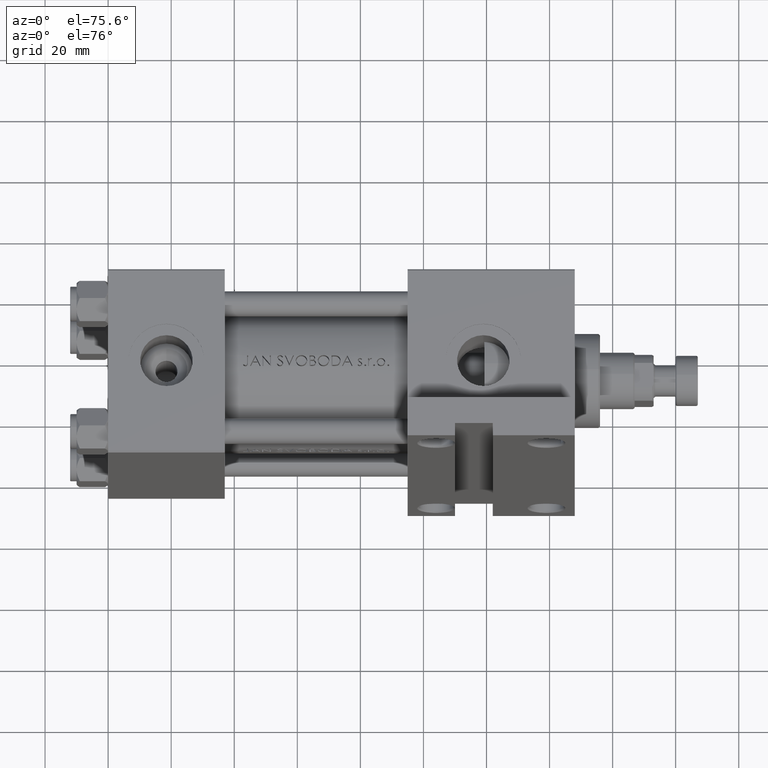
[diagram: clean part render]
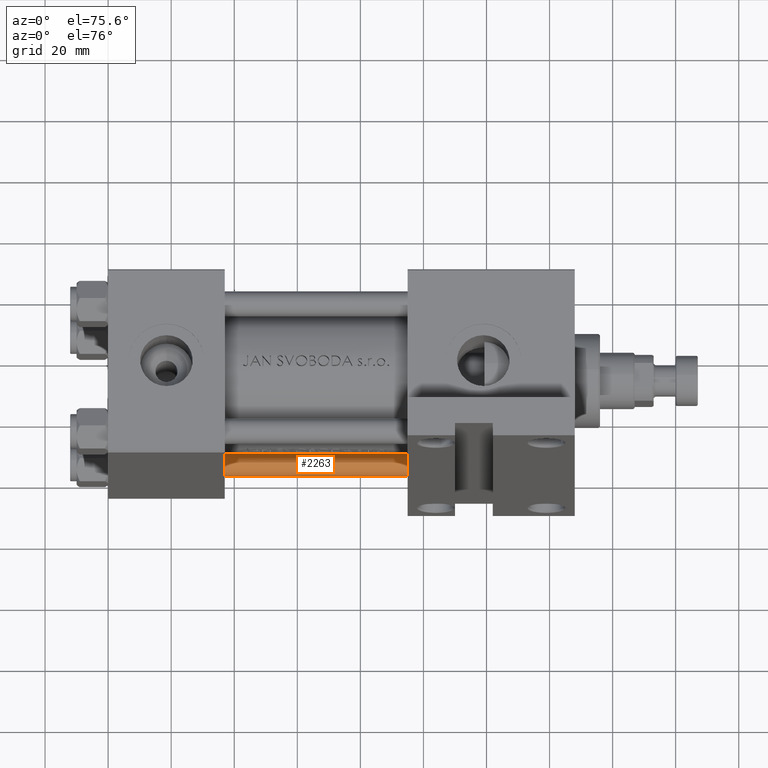
[diagram: same view with one face highlighted and labeled with its STEP entity id]
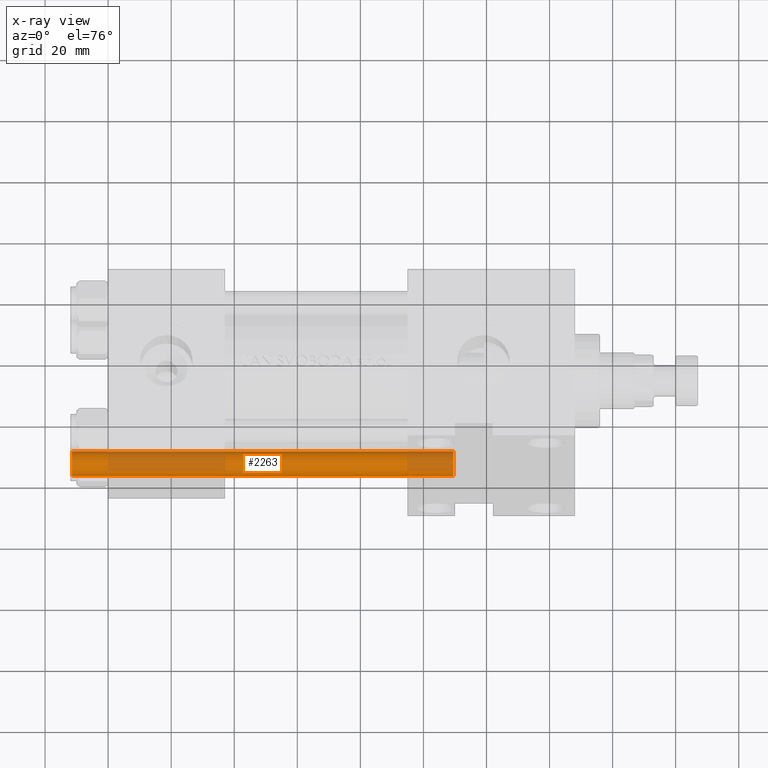
[diagram: x-ray of the same camera — body ghosted, the highlighted face saturated]
A machine part, auxiliary view. The second image highlights one B-rep face of the part: STEP entity #2263.
The next image is the same camera in x-ray: the body ghosted, the highlighted face saturated — about 35% of this face is hidden behind the body in this view.
In plain terms, the highlighted cylindrical surface (edge-blend (fillet) strip) has radius 4 mm, axis along (1, 0, 0).
Its self-contained STEP definition (entity closure, byte-faithful):
#1194 = AXIS2_PLACEMENT_3D ( 'NONE', #21496, #37397, #29452 ) ;
#2263 = ADVANCED_FACE ( 'NONE', ( #7057 ), #18252, .T. ) ;
#2297 = CARTESIAN_POINT ( 'NONE',  ( -4.000000000000000000, 0.000000000000000000, 121.5000000000000426 ) ) ;
#7057 = FACE_OUTER_BOUND ( 'NONE', #12058, .T. ) ;
#8117 = CIRCLE ( 'NONE', #34328, 4.000000000000000000 ) ;
#8607 = CARTESIAN_POINT ( 'NONE',  ( 4.000000000000000000, 4.898587196589411843E-16, 122.0000000000000000 ) ) ;
#12058 = EDGE_LOOP ( 'NONE', ( #30365, #22922, #33138, #43601 ) ) ;
#12484 = DIRECTION ( 'NONE',  ( 0.000000000000000000, 0.000000000000000000, -1.000000000000000000 ) ) ;
#14814 = LINE ( 'NONE', #25770, #24776 ) ;
#14863 = LINE ( 'NONE', #8607, #15175 ) ;
#15175 = VECTOR ( 'NONE', #23792, 1000.000000000000000 ) ;
#15312 = EDGE_CURVE ( 'NONE', #27901, #26253, #17383, .T. ) ;
#17383 = CIRCLE ( 'NONE', #45184, 4.000000000000000000 ) ;
#18252 = CYLINDRICAL_SURFACE ( 'NONE', #1194, 4.000000000000000000 ) ;
#20676 = VERTEX_POINT ( 'NONE', #27748 ) ;
#20768 = DIRECTION ( 'NONE',  ( -0.000000000000000000, -0.000000000000000000, 1.000000000000000000 ) ) ;
#21276 = DIRECTION ( 'NONE',  ( 1.000000000000000000, 0.000000000000000000, 0.000000000000000000 ) ) ;
#21496 = CARTESIAN_POINT ( 'NONE',  ( 0.000000000000000000, 0.000000000000000000, 122.0000000000000000 ) ) ;
#22922 = ORIENTED_EDGE ( 'NONE', *, *, #23901, .T. ) ;
#23435 = CARTESIAN_POINT ( 'NONE',  ( -4.000000000000000000, 0.000000000000000000, 0.5000000000000559552 ) ) ;
#23792 = DIRECTION ( 'NONE',  ( -0.000000000000000000, -0.000000000000000000, -1.000000000000000000 ) ) ;
#23901 = EDGE_CURVE ( 'NONE', #20676, #27901, #14863, .T. ) ;
#24776 = VECTOR ( 'NONE', #37688, 1000.000000000000000 ) ;
#25770 = CARTESIAN_POINT ( 'NONE',  ( -4.000000000000000000, 0.000000000000000000, 122.0000000000000000 ) ) ;
#26253 = VERTEX_POINT ( 'NONE', #23435 ) ;
#27649 = CARTESIAN_POINT ( 'NONE',  ( 0.000000000000000000, 0.000000000000000000, 121.5000000000000426 ) ) ;
#27748 = CARTESIAN_POINT ( 'NONE',  ( 4.000000000000000000, 4.898587196589411843E-16, 121.5000000000000426 ) ) ;
#27901 = VERTEX_POINT ( 'NONE', #41163 ) ;
#28645 = DIRECTION ( 'NONE',  ( 1.000000000000000000, 0.000000000000000000, 0.000000000000000000 ) ) ;
#29452 = DIRECTION ( 'NONE',  ( -1.000000000000000000, 0.000000000000000000, 0.000000000000000000 ) ) ;
#30365 = ORIENTED_EDGE ( 'NONE', *, *, #42374, .T. ) ;
#33138 = ORIENTED_EDGE ( 'NONE', *, *, #15312, .T. ) ;
#34328 = AXIS2_PLACEMENT_3D ( 'NONE', #27649, #12484, #28645 ) ;
#36033 = VERTEX_POINT ( 'NONE', #2297 ) ;
#37397 = DIRECTION ( 'NONE',  ( -0.000000000000000000, -0.000000000000000000, -1.000000000000000000 ) ) ;
#37688 = DIRECTION ( 'NONE',  ( -0.000000000000000000, -0.000000000000000000, -1.000000000000000000 ) ) ;
#41154 = EDGE_CURVE ( 'NONE', #36033, #26253, #14814, .T. ) ;
#41163 = CARTESIAN_POINT ( 'NONE',  ( 4.000000000000000000, 4.898587196589411843E-16, 0.5000000000000559552 ) ) ;
#42374 = EDGE_CURVE ( 'NONE', #36033, #20676, #8117, .T. ) ;
#43407 = CARTESIAN_POINT ( 'NONE',  ( 0.000000000000000000, 0.000000000000000000, 0.5000000000000559552 ) ) ;
#43601 = ORIENTED_EDGE ( 'NONE', *, *, #41154, .F. ) ;
#45184 = AXIS2_PLACEMENT_3D ( 'NONE', #43407, #20768, #21276 ) ;